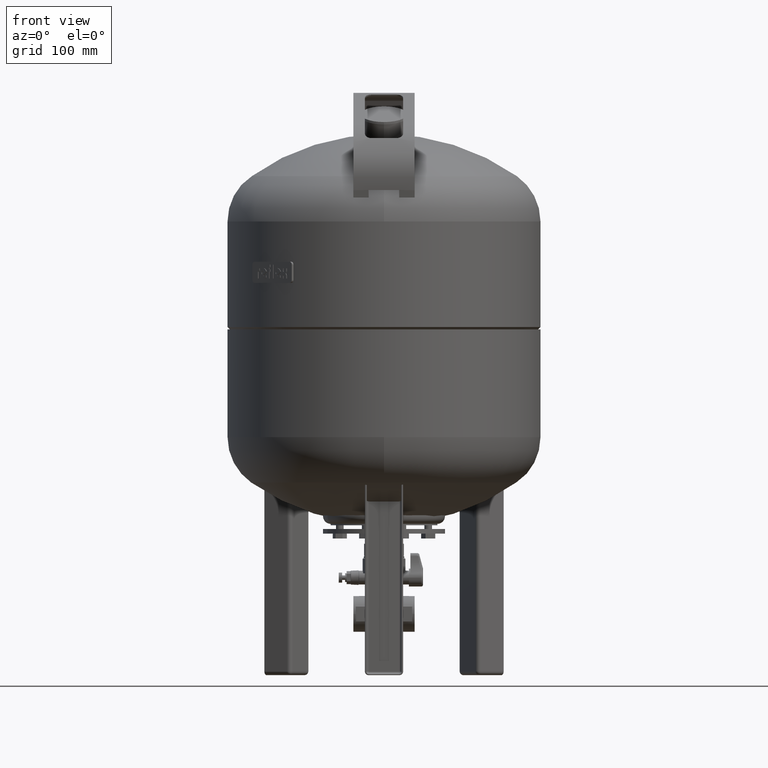
[diagram: clean part render]
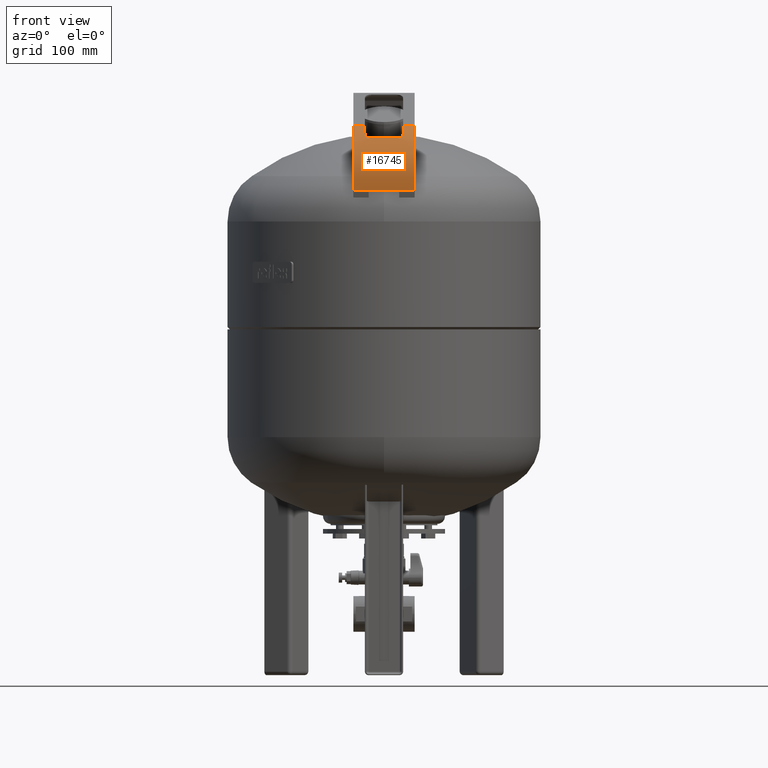
[diagram: same view with one face highlighted and labeled with its STEP entity id]
A machine part, front view. The second image highlights one B-rep face of the part: STEP entity #16745.
In plain terms, the highlighted cylindrical surface (partial cylindrical patch) has radius 79 mm, axis along (1, -0, -0).
Its self-contained STEP definition (entity closure, byte-faithful):
#16053=CARTESIAN_POINT('',(19.999999999999957,-200.163804636644560,634.114562409140260));
#16054=VERTEX_POINT('',#16053);
#16061=CARTESIAN_POINT('',(-20.000000000000039,-200.163804636644560,634.114562409140260));
#16062=VERTEX_POINT('',#16061);
#16063=CARTESIAN_POINT('',(-20.000000000000039,-200.163804636644560,634.114562409140260));
#16064=DIRECTION('',(1.0,0.0,0.0));
#16065=VECTOR('',#16064,40.0);
#16066=LINE('',#16063,#16065);
#16067=EDGE_CURVE('',#16062,#16054,#16066,.T.);
#16273=CARTESIAN_POINT('',(-25.0,-177.321256469129540,707.844394947854990));
#16274=VERTEX_POINT('',#16273);
#16281=CARTESIAN_POINT('',(-17.000000000000028,-182.906346499978580,701.961971987519410));
#16282=VERTEX_POINT('',#16281);
#16283=CARTESIAN_POINT('',(-17.000000000000028,-182.906346499978500,701.961971987519410));
#16284=CARTESIAN_POINT('',(-18.001098037693421,-182.906381614006390,701.961930978708100));
#16285=CARTESIAN_POINT('',(-18.994389289908071,-182.782826197702830,702.107222914163230));
#16286=CARTESIAN_POINT('',(-20.846478049911724,-182.298346290097530,702.664941770660220));
#16287=CARTESIAN_POINT('',(-21.688261161398451,-181.945797344948860,703.067332262864280));
#16288=CARTESIAN_POINT('',(-23.154927435061765,-181.029124077552720,704.081009444390590));
#16289=CARTESIAN_POINT('',(-23.760069219120300,-180.467804229513260,704.687881757241480));
#16290=CARTESIAN_POINT('',(-24.462487950084554,-179.449280154450860,705.746682768458300));
#16291=CARTESIAN_POINT('',(-24.663795012076239,-179.042268464763480,706.161314603173200));
#16292=CARTESIAN_POINT('',(-24.932595877861115,-178.197181323761670,707.002128062030240));
#16293=CARTESIAN_POINT('',(-25.000029814050297,-177.762044311912490,707.425481416773100));
#16294=CARTESIAN_POINT('',(-25.0,-177.321256469129540,707.844394947854990));
#16295=B_SPLINE_CURVE_WITH_KNOTS('',3,(#16283,#16284,#16285,#16286,#16287,#16288,#16289,#16290,#16291,#16292,#16293,#16294),.UNSPECIFIED.,.F.,.U.,(4,2,2,2,2,4),(0.0,0.300329411744744,0.596044484812661,0.899555431535718,1.082712991981320,1.264749568333981),.UNSPECIFIED.);
#16296=EDGE_CURVE('',#16282,#16274,#16295,.T.);
#16321=CARTESIAN_POINT('',(16.999999999999964,-182.906346499978500,701.961971987519410));
#16322=VERTEX_POINT('',#16321);
#16323=CARTESIAN_POINT('',(16.999999999999964,-182.906346499978500,701.961971987519410));
#16324=DIRECTION('',(-1.0,0.0,0.0));
#16325=VECTOR('',#16324,33.999999999999993);
#16326=LINE('',#16323,#16325);
#16327=EDGE_CURVE('',#16322,#16282,#16326,.T.);
#16532=CARTESIAN_POINT('',(24.999999999999972,-177.321256469129540,707.844394947854990));
#16533=VERTEX_POINT('',#16532);
#16534=CARTESIAN_POINT('',(24.999999999999929,-177.321256469129540,707.844394947854990));
#16535=CARTESIAN_POINT('',(25.000052143342906,-178.092173250186140,707.111735288087970));
#16536=CARTESIAN_POINT('',(24.793327339327657,-178.843363176073500,706.367034814636900));
#16537=CARTESIAN_POINT('',(23.980301755713178,-180.230431157135940,704.940864979768210));
#16538=CARTESIAN_POINT('',(23.375306670411835,-180.852004390900160,704.273803716465070));
#16539=CARTESIAN_POINT('',(21.900263560729496,-181.841186746688440,703.185196081422190));
#16540=CARTESIAN_POINT('',(21.067202024343089,-182.216168773093840,702.758745470582650));
#16541=CARTESIAN_POINT('',(19.662136493641508,-182.617133658334550,702.298260054275830));
#16542=CARTESIAN_POINT('',(19.154013798091640,-182.723201995612100,702.175211153190500));
#16543=CARTESIAN_POINT('',(18.095566499509562,-182.869214934555060,702.005431208482610));
#16544=CARTESIAN_POINT('',(17.548063254248071,-182.906365723578770,701.961949536748530));
#16545=CARTESIAN_POINT('',(16.999999999999964,-182.906346499978500,701.961971987519410));
#16546=B_SPLINE_CURVE_WITH_KNOTS('',3,(#16534,#16535,#16536,#16537,#16538,#16539,#16540,#16541,#16542,#16543,#16544,#16545),.UNSPECIFIED.,.F.,.U.,(4,2,2,2,2,4),(0.0,0.319059959376750,0.643429384093297,0.942865666803827,1.102285567286538,1.266952028297452),.UNSPECIFIED.);
#16547=EDGE_CURVE('',#16533,#16322,#16546,.T.);
#16652=CARTESIAN_POINT('',(-2.577317E-014,-122.898777411385400,650.580149792527890));
#16653=DIRECTION('',(1.0,-2.041297E-016,-1.193991E-017));
#16654=DIRECTION('',(-9.268022E-017,-0.504527623815021,0.863395550606771));
#16655=AXIS2_PLACEMENT_3D('',#16652,#16653,#16654);
#16656=CYLINDRICAL_SURFACE('',#16655,79.0);
#16657=CARTESIAN_POINT('',(24.999999999999968,-162.756459692772100,718.788398290462740));
#16658=VERTEX_POINT('',#16657);
#16659=CARTESIAN_POINT('',(24.999999999999975,-122.898777411385400,650.580149792527890));
#16660=DIRECTION('',(1.000000000000000,-4.675973E-017,8.001969E-017));
#16661=DIRECTION('',(-9.268022E-017,-0.504527623815021,0.863395550606771));
#16662=AXIS2_PLACEMENT_3D('',#16659,#16660,#16661);
#16663=CIRCLE('',#16662,79.0);
#16664=EDGE_CURVE('',#16658,#16533,#16663,.T.);
#16665=ORIENTED_EDGE('',*,*,#16664,.T.);
#16666=ORIENTED_EDGE('',*,*,#16547,.T.);
#16667=ORIENTED_EDGE('',*,*,#16327,.T.);
#16668=ORIENTED_EDGE('',*,*,#16296,.T.);
#16669=CARTESIAN_POINT('',(-25.000000000000032,-162.756459692772100,718.788398290462740));
#16670=VERTEX_POINT('',#16669);
#16671=CARTESIAN_POINT('',(-25.000000000000025,-122.898777411385400,650.580149792527890));
#16672=DIRECTION('',(-1.000000000000000,4.675973E-017,-8.001969E-017));
#16673=DIRECTION('',(-9.268022E-017,-0.504527623815021,0.863395550606771));
#16674=AXIS2_PLACEMENT_3D('',#16671,#16672,#16673);
#16675=CIRCLE('',#16674,79.0);
#16676=EDGE_CURVE('',#16274,#16670,#16675,.T.);
#16677=ORIENTED_EDGE('',*,*,#16676,.T.);
#16678=CARTESIAN_POINT('',(-40.000000000000028,-162.756459692772100,718.788398290462740));
#16679=VERTEX_POINT('',#16678);
#16680=CARTESIAN_POINT('',(-40.000000000000028,-162.756459692772100,718.788398290462740));
#16681=DIRECTION('',(1.0,0.0,0.0));
#16682=VECTOR('',#16681,14.999999999999996);
#16683=LINE('',#16680,#16682);
#16684=EDGE_CURVE('',#16679,#16670,#16683,.T.);
#16685=ORIENTED_EDGE('',*,*,#16684,.F.);
#16686=CARTESIAN_POINT('',(-40.000000000000043,-200.085377791771320,633.750749276804530));
#16687=VERTEX_POINT('',#16686);
#16688=CARTESIAN_POINT('',(-40.000000000000021,-122.898777411385380,650.580149792527890));
#16689=DIRECTION('',(1.000000000000000,-4.675973E-017,8.001969E-017));
#16690=DIRECTION('',(-9.268022E-017,-0.504527623815021,0.863395550606771));
#16691=AXIS2_PLACEMENT_3D('',#16688,#16689,#16690);
#16692=CIRCLE('',#16691,79.0);
#16693=EDGE_CURVE('',#16679,#16687,#16692,.T.);
#16694=ORIENTED_EDGE('',*,*,#16693,.T.);
#16695=CARTESIAN_POINT('',(-20.000000000000039,-200.085377791771320,633.750749276804530));
#16696=VERTEX_POINT('',#16695);
#16697=CARTESIAN_POINT('',(-20.000000000000039,-200.085377791771320,633.750749276804530));
#16698=DIRECTION('',(-1.0,0.0,0.0));
#16699=VECTOR('',#16698,20.000000000000004);
#16700=LINE('',#16697,#16699);
#16701=EDGE_CURVE('',#16696,#16687,#16700,.T.);
#16702=ORIENTED_EDGE('',*,*,#16701,.F.);
#16703=CARTESIAN_POINT('',(-20.000000000000025,-122.898777411385400,650.580149792527890));
#16704=DIRECTION('',(-1.000000000000000,4.675973E-017,-8.001969E-017));
#16705=DIRECTION('',(-9.268022E-017,-0.504527623815021,0.863395550606771));
#16706=AXIS2_PLACEMENT_3D('',#16703,#16704,#16705);
#16707=CIRCLE('',#16706,79.0);
#16708=EDGE_CURVE('',#16696,#16062,#16707,.T.);
#16709=ORIENTED_EDGE('',*,*,#16708,.T.);
#16710=ORIENTED_EDGE('',*,*,#16067,.T.);
#16711=CARTESIAN_POINT('',(19.999999999999957,-200.085377791771320,633.750749276804530));
#16712=VERTEX_POINT('',#16711);
#16713=CARTESIAN_POINT('',(19.999999999999982,-122.898777411385400,650.580149792527890));
#16714=DIRECTION('',(1.000000000000000,-4.675973E-017,8.001969E-017));
#16715=DIRECTION('',(-9.268022E-017,-0.504527623815021,0.863395550606771));
#16716=AXIS2_PLACEMENT_3D('',#16713,#16714,#16715);
#16717=CIRCLE('',#16716,79.0);
#16718=EDGE_CURVE('',#16054,#16712,#16717,.T.);
#16719=ORIENTED_EDGE('',*,*,#16718,.T.);
#16720=CARTESIAN_POINT('',(39.999999999999957,-200.085377791771320,633.750749276804530));
#16721=VERTEX_POINT('',#16720);
#16722=CARTESIAN_POINT('',(39.999999999999957,-200.085377791771320,633.750749276804530));
#16723=DIRECTION('',(-1.0,0.0,0.0));
#16724=VECTOR('',#16723,20.0);
#16725=LINE('',#16722,#16724);
#16726=EDGE_CURVE('',#16721,#16712,#16725,.T.);
#16727=ORIENTED_EDGE('',*,*,#16726,.F.);
#16728=CARTESIAN_POINT('',(39.999999999999964,-162.756459692772100,718.788398290462740));
#16729=VERTEX_POINT('',#16728);
#16730=CARTESIAN_POINT('',(39.999999999999964,-122.898777411385410,650.580149792527890));
#16731=DIRECTION('',(-1.000000000000000,4.675973E-017,-8.001969E-017));
#16732=DIRECTION('',(-9.268022E-017,-0.504527623815021,0.863395550606771));
#16733=AXIS2_PLACEMENT_3D('',#16730,#16731,#16732);
#16734=CIRCLE('',#16733,79.0);
#16735=EDGE_CURVE('',#16721,#16729,#16734,.T.);
#16736=ORIENTED_EDGE('',*,*,#16735,.T.);
#16737=CARTESIAN_POINT('',(24.999999999999968,-162.756459692772100,718.788398290462740));
#16738=DIRECTION('',(1.0,0.0,0.0));
#16739=VECTOR('',#16738,14.999999999999996);
#16740=LINE('',#16737,#16739);
#16741=EDGE_CURVE('',#16658,#16729,#16740,.T.);
#16742=ORIENTED_EDGE('',*,*,#16741,.F.);
#16743=EDGE_LOOP('',(#16665,#16666,#16667,#16668,#16677,#16685,#16694,#16702,#16709,#16710,#16719,#16727,#16736,#16742));
#16744=FACE_OUTER_BOUND('',#16743,.T.);
#16745=ADVANCED_FACE('',(#16744),#16656,.T.);